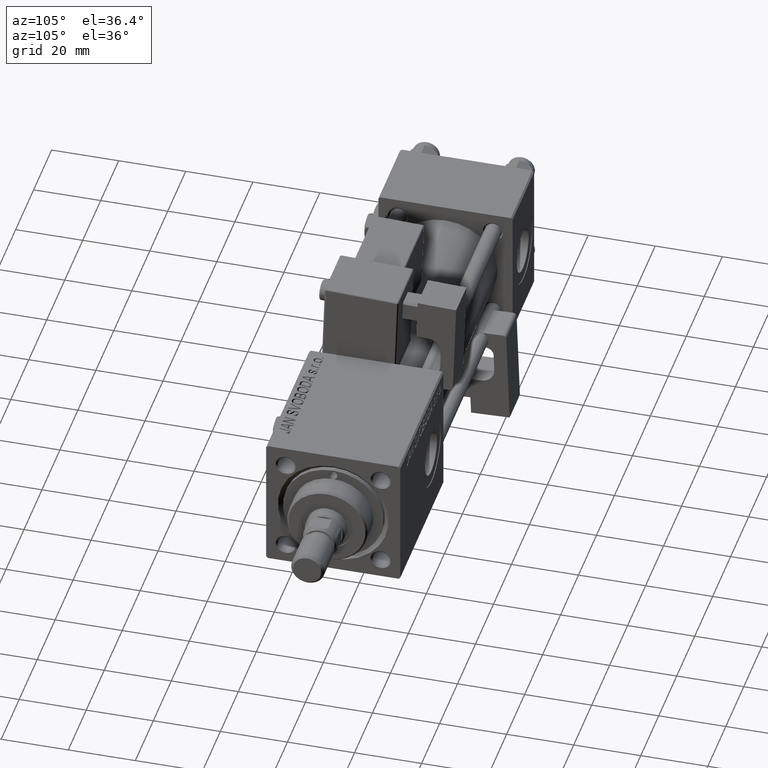
[diagram: clean part render]
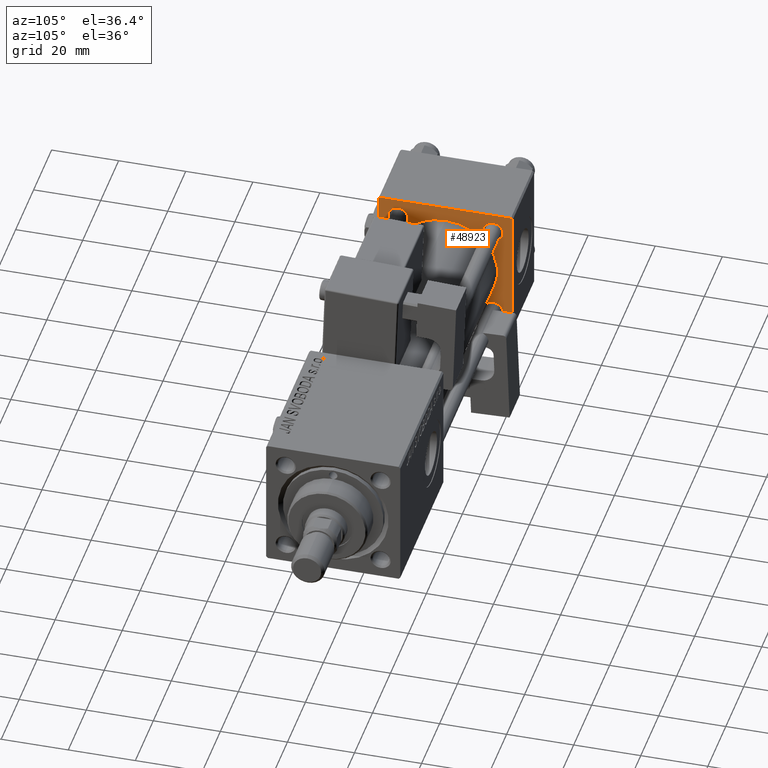
[diagram: same view with one face highlighted and labeled with its STEP entity id]
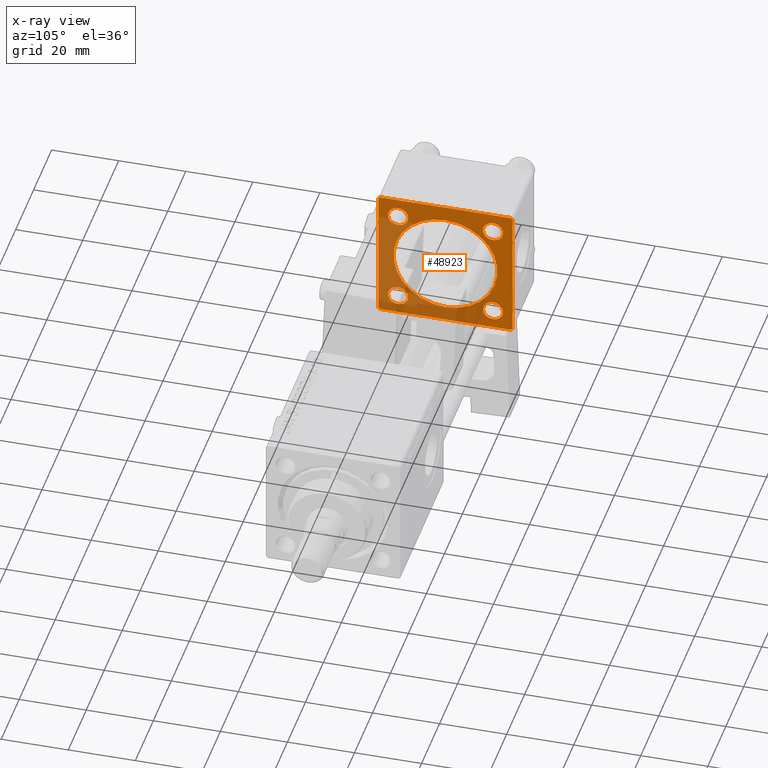
[diagram: x-ray of the same camera — body ghosted, the highlighted face saturated]
A machine part, auxiliary view. The second image highlights one B-rep face of the part: STEP entity #48923.
The next image is the same camera in x-ray: the body ghosted, the highlighted face saturated — about 44% of this face is hidden behind the body in this view.
In plain terms, the highlighted planar face has unit normal (-1, 0, 0).
Its self-contained STEP definition (entity closure, byte-faithful):
#200 = DIRECTION ( 'NONE',  ( 0.000000000000000000, -0.7071067811865425767, 0.7071067811865525687 ) ) ;
#602 = CIRCLE ( 'NONE', #21948, 2.999999999999987121 ) ;
#743 = CARTESIAN_POINT ( 'NONE',  ( 24.00000000000000000, 19.50000000000000000, 20.00000000000000000 ) ) ;
#1368 = DIRECTION ( 'NONE',  ( -1.000000000000000000, -0.000000000000000000, -0.000000000000000000 ) ) ;
#1684 = DIRECTION ( 'NONE',  ( 0.000000000000000000, 0.000000000000000000, 1.000000000000000000 ) ) ;
#2131 = FACE_BOUND ( 'NONE', #51799, .T. ) ;
#2253 = EDGE_CURVE ( 'NONE', #18243, #45072, #24989, .T. ) ;
#2409 = VERTEX_POINT ( 'NONE', #40534 ) ;
#2818 = AXIS2_PLACEMENT_3D ( 'NONE', #12326, #51252, #16768 ) ;
#2941 = CARTESIAN_POINT ( 'NONE',  ( 24.00000000000000000, 14.14999999999999858, -17.14999999999999147 ) ) ;
#3072 = VERTEX_POINT ( 'NONE', #22449 ) ;
#3110 = DIRECTION ( 'NONE',  ( 0.000000000000000000, 0.000000000000000000, 1.000000000000000000 ) ) ;
#3505 = VECTOR ( 'NONE', #200, 999.9999999999998863 ) ;
#3582 = ORIENTED_EDGE ( 'NONE', *, *, #20509, .T. ) ;
#3683 = EDGE_CURVE ( 'NONE', #32787, #33975, #34487, .T. ) ;
#3856 = CARTESIAN_POINT ( 'NONE',  ( 24.00000000000000000, -14.14999999999999503, 17.14999999999998082 ) ) ;
#4126 = DIRECTION ( 'NONE',  ( 0.000000000000000000, -1.000000000000000000, -2.602085213965210149E-16 ) ) ;
#4487 = DIRECTION ( 'NONE',  ( 0.000000000000000000, 0.000000000000000000, 1.000000000000000000 ) ) ;
#4627 = VERTEX_POINT ( 'NONE', #11468 ) ;
#4784 = EDGE_CURVE ( 'NONE', #33975, #32787, #17631, .T. ) ;
#4860 = CARTESIAN_POINT ( 'NONE',  ( 24.00000000000000000, 14.14999999999999858, 17.14999999999999147 ) ) ;
#5016 = EDGE_LOOP ( 'NONE', ( #30240, #25670 ) ) ;
#5068 = VERTEX_POINT ( 'NONE', #50866 ) ;
#5398 = CARTESIAN_POINT ( 'NONE',  ( 24.00000000000000000, 14.14999999999999858, -11.15000000000001279 ) ) ;
#5475 = FACE_BOUND ( 'NONE', #47598, .T. ) ;
#6017 = CARTESIAN_POINT ( 'NONE',  ( 24.00000000000000000, 0.000000000000000000, 0.000000000000000000 ) ) ;
#6738 = CARTESIAN_POINT ( 'NONE',  ( 24.00000000000000000, -14.14999999999999503, -14.15000000000000391 ) ) ;
#7803 = CARTESIAN_POINT ( 'NONE',  ( 24.00000000000000000, -20.00000000000000355, 19.49999999999998224 ) ) ;
#8387 = CARTESIAN_POINT ( 'NONE',  ( 24.00000000000000000, -19.49999999999999289, 19.99999999999998934 ) ) ;
#9028 = CIRCLE ( 'NONE', #2818, 2.999999999999987121 ) ;
#9100 = LINE ( 'NONE', #743, #3505 ) ;
#9574 = EDGE_CURVE ( 'NONE', #39043, #4627, #43193, .T. ) ;
#9711 = AXIS2_PLACEMENT_3D ( 'NONE', #51020, #13190, #48709 ) ;
#10088 = ORIENTED_EDGE ( 'NONE', *, *, #9574, .T. ) ;
#10348 = AXIS2_PLACEMENT_3D ( 'NONE', #52313, #48138, #1684 ) ;
#11324 = ORIENTED_EDGE ( 'NONE', *, *, #2253, .T. ) ;
#11468 = CARTESIAN_POINT ( 'NONE',  ( 24.00000000000000000, -20.00000000000000000, -19.49999999999999645 ) ) ;
#11784 = VERTEX_POINT ( 'NONE', #49876 ) ;
#12133 = VECTOR ( 'NONE', #30939, 1000.000000000000000 ) ;
#12206 = ORIENTED_EDGE ( 'NONE', *, *, #4784, .T. ) ;
#12249 = LINE ( 'NONE', #7803, #30899 ) ;
#12289 = DIRECTION ( 'NONE',  ( 0.000000000000000000, 0.000000000000000000, -1.000000000000000000 ) ) ;
#12326 = CARTESIAN_POINT ( 'NONE',  ( 24.00000000000000000, 14.14999999999999858, 14.15000000000000036 ) ) ;
#13066 = DIRECTION ( 'NONE',  ( 0.000000000000000000, 0.000000000000000000, 1.000000000000000000 ) ) ;
#13190 = DIRECTION ( 'NONE',  ( 1.000000000000000000, 0.000000000000000000, 0.000000000000000000 ) ) ;
#13517 = CARTESIAN_POINT ( 'NONE',  ( 24.00000000000000000, -14.14999999999999503, -11.14999999999998614 ) ) ;
#13596 = CARTESIAN_POINT ( 'NONE',  ( 24.00000000000000000, -20.00000000000000355, 19.49999999999998224 ) ) ;
#14094 = FACE_BOUND ( 'NONE', #35401, .T. ) ;
#14481 = ORIENTED_EDGE ( 'NONE', *, *, #45821, .T. ) ;
#14646 = FACE_BOUND ( 'NONE', #5016, .T. ) ;
#15124 = AXIS2_PLACEMENT_3D ( 'NONE', #54927, #37152, #49948 ) ;
#15253 = EDGE_CURVE ( 'NONE', #45072, #39043, #12249, .T. ) ;
#16768 = DIRECTION ( 'NONE',  ( 0.000000000000000000, 0.000000000000000000, 1.000000000000000000 ) ) ;
#17011 = AXIS2_PLACEMENT_3D ( 'NONE', #17778, #1368, #25866 ) ;
#17594 = AXIS2_PLACEMENT_3D ( 'NONE', #34588, #52380, #17597 ) ;
#17597 = DIRECTION ( 'NONE',  ( 0.000000000000000000, 0.000000000000000000, 1.000000000000000000 ) ) ;
#17631 = CIRCLE ( 'NONE', #19444, 2.999999999999976463 ) ;
#17778 = CARTESIAN_POINT ( 'NONE',  ( 24.00000000000000000, 14.14999999999999858, -14.15000000000000036 ) ) ;
#18131 = ORIENTED_EDGE ( 'NONE', *, *, #54411, .F. ) ;
#18165 = EDGE_CURVE ( 'NONE', #5068, #41608, #22114, .T. ) ;
#18243 = VERTEX_POINT ( 'NONE', #53446 ) ;
#19006 = EDGE_CURVE ( 'NONE', #40119, #26005, #31059, .T. ) ;
#19083 = DIRECTION ( 'NONE',  ( -1.000000000000000000, 0.000000000000000000, -0.000000000000000000 ) ) ;
#19444 = AXIS2_PLACEMENT_3D ( 'NONE', #39246, #30868, #4487 ) ;
#20509 = EDGE_CURVE ( 'NONE', #4627, #11784, #49252, .T. ) ;
#21355 = CARTESIAN_POINT ( 'NONE',  ( 24.00000000000000000, 20.00000000000000000, 20.00000000000000000 ) ) ;
#21890 = DIRECTION ( 'NONE',  ( -0.000000000000000000, 0.7071067811865524577, 0.7071067811865426878 ) ) ;
#21923 = DIRECTION ( 'NONE',  ( 0.000000000000000000, 0.000000000000000000, 1.000000000000000000 ) ) ;
#21948 = AXIS2_PLACEMENT_3D ( 'NONE', #39476, #35023, #21923 ) ;
#22114 = CIRCLE ( 'NONE', #9711, 15.50000000000000000 ) ;
#22126 = VERTEX_POINT ( 'NONE', #28321 ) ;
#22417 = FACE_OUTER_BOUND ( 'NONE', #53783, .T. ) ;
#22449 = CARTESIAN_POINT ( 'NONE',  ( 24.00000000000000000, 20.00000000000000000, -19.50000000000002132 ) ) ;
#23020 = EDGE_CURVE ( 'NONE', #26005, #40119, #52554, .T. ) ;
#23653 = CARTESIAN_POINT ( 'NONE',  ( 24.00000000000000000, 20.00000000000000000, 19.49999999999999289 ) ) ;
#23724 = EDGE_CURVE ( 'NONE', #53116, #33322, #9028, .T. ) ;
#23964 = CARTESIAN_POINT ( 'NONE',  ( 24.00000000000000000, 20.00000000000000000, -20.00000000000000711 ) ) ;
#23969 = DIRECTION ( 'NONE',  ( -1.000000000000000000, -0.000000000000000000, -0.000000000000000000 ) ) ;
#24989 = LINE ( 'NONE', #21355, #41556 ) ;
#25670 = ORIENTED_EDGE ( 'NONE', *, *, #18165, .F. ) ;
#25857 = DIRECTION ( 'NONE',  ( 1.000000000000000000, 0.000000000000000000, 0.000000000000000000 ) ) ;
#25866 = DIRECTION ( 'NONE',  ( 0.000000000000000000, 0.000000000000000000, 1.000000000000000000 ) ) ;
#26005 = VERTEX_POINT ( 'NONE', #5398 ) ;
#26949 = CARTESIAN_POINT ( 'NONE',  ( 24.00000000000000000, -14.14999999999999503, 11.15000000000002878 ) ) ;
#28321 = CARTESIAN_POINT ( 'NONE',  ( 24.00000000000000000, 19.50000000000000711, -20.00000000000000711 ) ) ;
#30042 = ORIENTED_EDGE ( 'NONE', *, *, #19006, .T. ) ;
#30062 = EDGE_LOOP ( 'NONE', ( #30042, #34489 ) ) ;
#30240 = ORIENTED_EDGE ( 'NONE', *, *, #48393, .F. ) ;
#30868 = DIRECTION ( 'NONE',  ( -1.000000000000000000, -0.000000000000000000, -0.000000000000000000 ) ) ;
#30899 = VECTOR ( 'NONE', #37580, 1000.000000000000114 ) ;
#30939 = DIRECTION ( 'NONE',  ( 0.000000000000000000, 8.673617379884036705E-17, -1.000000000000000000 ) ) ;
#31051 = DIRECTION ( 'NONE',  ( -0.000000000000000000, 0.000000000000000000, 1.000000000000000000 ) ) ;
#31059 = CIRCLE ( 'NONE', #15124, 2.999999999999987121 ) ;
#32253 = ORIENTED_EDGE ( 'NONE', *, *, #48795, .T. ) ;
#32511 = VECTOR ( 'NONE', #21890, 1000.000000000000000 ) ;
#32588 = DIRECTION ( 'NONE',  ( 0.000000000000000000, -1.000000000000000000, 1.734723475976807094E-16 ) ) ;
#32787 = VERTEX_POINT ( 'NONE', #26949 ) ;
#32832 = ORIENTED_EDGE ( 'NONE', *, *, #3683, .T. ) ;
#33161 = CARTESIAN_POINT ( 'NONE',  ( 24.00000000000000000, 20.00000000000000000, 20.00000000000000000 ) ) ;
#33322 = VERTEX_POINT ( 'NONE', #50982 ) ;
#33975 = VERTEX_POINT ( 'NONE', #3856 ) ;
#33983 = LINE ( 'NONE', #33161, #48907 ) ;
#34487 = CIRCLE ( 'NONE', #17594, 2.999999999999976463 ) ;
#34489 = ORIENTED_EDGE ( 'NONE', *, *, #23020, .T. ) ;
#34588 = CARTESIAN_POINT ( 'NONE',  ( 24.00000000000000000, -14.14999999999999503, 14.15000000000000391 ) ) ;
#34840 = EDGE_CURVE ( 'NONE', #22126, #3072, #51687, .T. ) ;
#35023 = DIRECTION ( 'NONE',  ( -1.000000000000000000, -0.000000000000000000, -0.000000000000000000 ) ) ;
#35188 = ORIENTED_EDGE ( 'NONE', *, *, #50608, .F. ) ;
#35401 = EDGE_LOOP ( 'NONE', ( #32832, #12206 ) ) ;
#35468 = CIRCLE ( 'NONE', #44358, 15.50000000000000000 ) ;
#35471 = AXIS2_PLACEMENT_3D ( 'NONE', #6738, #23969, #3110 ) ;
#35511 = FACE_BOUND ( 'NONE', #30062, .T. ) ;
#36194 = ORIENTED_EDGE ( 'NONE', *, *, #38733, .T. ) ;
#36644 = VECTOR ( 'NONE', #32588, 1000.000000000000000 ) ;
#36739 = CARTESIAN_POINT ( 'NONE',  ( 24.00000000000000000, -19.50000000000000711, -20.00000000000000000 ) ) ;
#37152 = DIRECTION ( 'NONE',  ( -1.000000000000000000, -0.000000000000000000, -0.000000000000000000 ) ) ;
#37580 = DIRECTION ( 'NONE',  ( -0.000000000000000000, -0.7071067811865500152, -0.7071067811865451302 ) ) ;
#38146 = AXIS2_PLACEMENT_3D ( 'NONE', #6017, #19083, #31051 ) ;
#38233 = VERTEX_POINT ( 'NONE', #13517 ) ;
#38700 = VERTEX_POINT ( 'NONE', #23653 ) ;
#38733 = EDGE_CURVE ( 'NONE', #38233, #2409, #42307, .T. ) ;
#39043 = VERTEX_POINT ( 'NONE', #13596 ) ;
#39246 = CARTESIAN_POINT ( 'NONE',  ( 24.00000000000000000, -14.14999999999999503, 14.15000000000000391 ) ) ;
#39421 = PLANE ( 'NONE',  #38146 ) ;
#39476 = CARTESIAN_POINT ( 'NONE',  ( 24.00000000000000000, 14.14999999999999858, 14.15000000000000036 ) ) ;
#40119 = VERTEX_POINT ( 'NONE', #2941 ) ;
#40514 = EDGE_CURVE ( 'NONE', #33322, #53116, #602, .T. ) ;
#40534 = CARTESIAN_POINT ( 'NONE',  ( 24.00000000000000000, -14.14999999999999503, -17.15000000000002345 ) ) ;
#40664 = LINE ( 'NONE', #23964, #36644 ) ;
#41556 = VECTOR ( 'NONE', #4126, 1000.000000000000000 ) ;
#41608 = VERTEX_POINT ( 'NONE', #49737 ) ;
#41965 = ORIENTED_EDGE ( 'NONE', *, *, #15253, .T. ) ;
#42307 = CIRCLE ( 'NONE', #10348, 3.000000000000018208 ) ;
#43193 = LINE ( 'NONE', #43743, #12133 ) ;
#43644 = CARTESIAN_POINT ( 'NONE',  ( 23.99999999999999289, -2.602085213965210642E-15, 0.000000000000000000 ) ) ;
#43743 = CARTESIAN_POINT ( 'NONE',  ( 24.00000000000000000, -20.00000000000000355, 19.99999999999998934 ) ) ;
#44358 = AXIS2_PLACEMENT_3D ( 'NONE', #43644, #25857, #13066 ) ;
#44482 = ORIENTED_EDGE ( 'NONE', *, *, #40514, .T. ) ;
#45072 = VERTEX_POINT ( 'NONE', #8387 ) ;
#45821 = EDGE_CURVE ( 'NONE', #2409, #38233, #53279, .T. ) ;
#46210 = VECTOR ( 'NONE', #48687, 1000.000000000000000 ) ;
#47598 = EDGE_LOOP ( 'NONE', ( #44482, #50397 ) ) ;
#48138 = DIRECTION ( 'NONE',  ( -1.000000000000000000, -0.000000000000000000, -0.000000000000000000 ) ) ;
#48393 = EDGE_CURVE ( 'NONE', #41608, #5068, #35468, .T. ) ;
#48687 = DIRECTION ( 'NONE',  ( 0.000000000000000000, 0.7071067811865401342, -0.7071067811865549002 ) ) ;
#48709 = DIRECTION ( 'NONE',  ( 0.000000000000000000, 0.000000000000000000, 1.000000000000000000 ) ) ;
#48795 = EDGE_CURVE ( 'NONE', #38700, #18243, #9100, .T. ) ;
#48907 = VECTOR ( 'NONE', #12289, 1000.000000000000000 ) ;
#48923 = ADVANCED_FACE ( 'NONE', ( #2131, #35511, #14094, #5475, #14646, #22417 ), #39421, .F. ) ;
#49252 = LINE ( 'NONE', #36739, #46210 ) ;
#49737 = CARTESIAN_POINT ( 'NONE',  ( 23.99999999999999289, -2.602085213965210642E-15, 15.50000000000000000 ) ) ;
#49876 = CARTESIAN_POINT ( 'NONE',  ( 24.00000000000000000, -19.50000000000000711, -20.00000000000000000 ) ) ;
#49948 = DIRECTION ( 'NONE',  ( 0.000000000000000000, 0.000000000000000000, 1.000000000000000000 ) ) ;
#50094 = ORIENTED_EDGE ( 'NONE', *, *, #34840, .T. ) ;
#50397 = ORIENTED_EDGE ( 'NONE', *, *, #23724, .T. ) ;
#50608 = EDGE_CURVE ( 'NONE', #38700, #3072, #33983, .T. ) ;
#50866 = CARTESIAN_POINT ( 'NONE',  ( 23.99999999999999289, -7.038826752868131828E-16, -15.50000000000000000 ) ) ;
#50982 = CARTESIAN_POINT ( 'NONE',  ( 24.00000000000000000, 14.14999999999999858, 11.15000000000001279 ) ) ;
#51020 = CARTESIAN_POINT ( 'NONE',  ( 23.99999999999999289, -2.602085213965210642E-15, 0.000000000000000000 ) ) ;
#51252 = DIRECTION ( 'NONE',  ( -1.000000000000000000, -0.000000000000000000, -0.000000000000000000 ) ) ;
#51687 = LINE ( 'NONE', #51958, #32511 ) ;
#51799 = EDGE_LOOP ( 'NONE', ( #14481, #36194 ) ) ;
#51958 = CARTESIAN_POINT ( 'NONE',  ( 24.00000000000000000, 20.00000000000000000, -19.50000000000002132 ) ) ;
#52313 = CARTESIAN_POINT ( 'NONE',  ( 24.00000000000000000, -14.14999999999999503, -14.15000000000000391 ) ) ;
#52380 = DIRECTION ( 'NONE',  ( -1.000000000000000000, -0.000000000000000000, -0.000000000000000000 ) ) ;
#52554 = CIRCLE ( 'NONE', #17011, 2.999999999999987121 ) ;
#53116 = VERTEX_POINT ( 'NONE', #4860 ) ;
#53279 = CIRCLE ( 'NONE', #35471, 3.000000000000018208 ) ;
#53446 = CARTESIAN_POINT ( 'NONE',  ( 24.00000000000000000, 19.50000000000000000, 20.00000000000000000 ) ) ;
#53783 = EDGE_LOOP ( 'NONE', ( #18131, #50094, #35188, #32253, #11324, #41965, #10088, #3582 ) ) ;
#54411 = EDGE_CURVE ( 'NONE', #22126, #11784, #40664, .T. ) ;
#54927 = CARTESIAN_POINT ( 'NONE',  ( 24.00000000000000000, 14.14999999999999858, -14.15000000000000036 ) ) ;